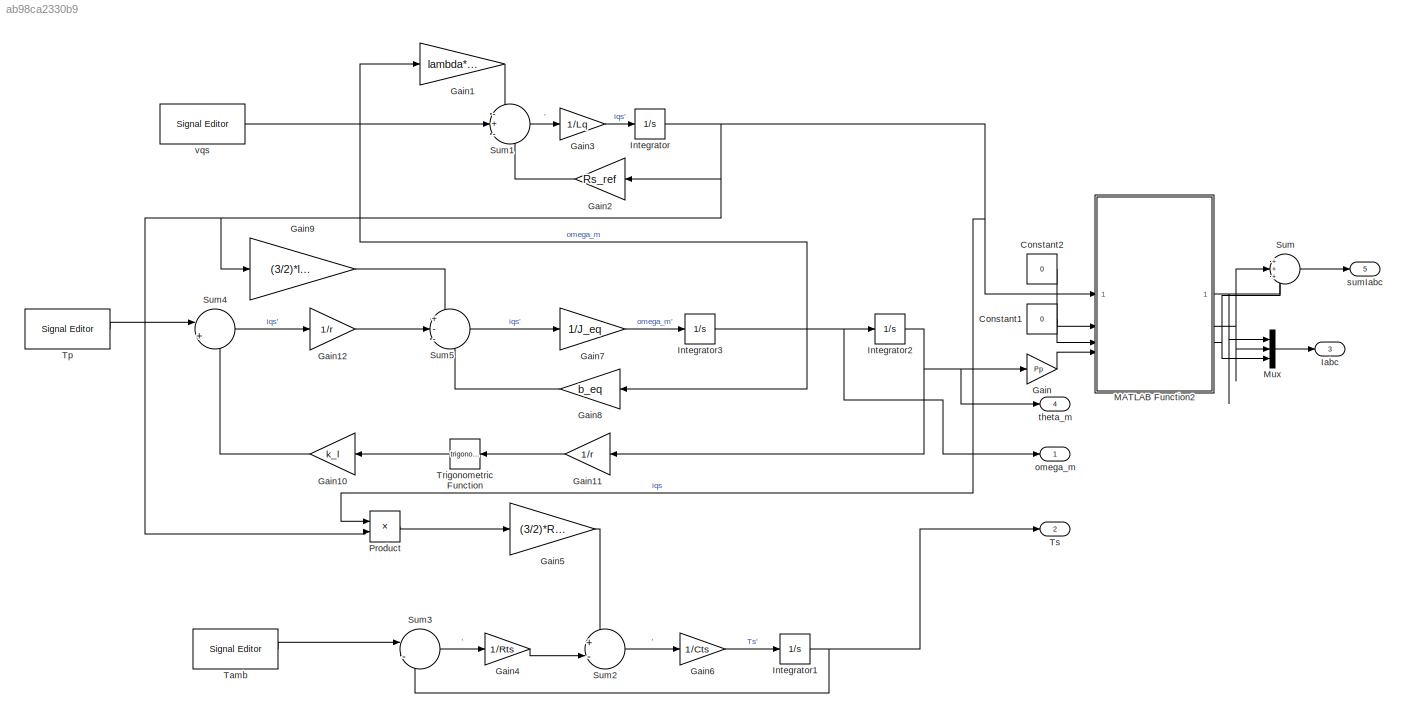
MODEL slx_ab98ca2330b9
KIND model
CONFIG AbsTol = auto
CONFIG EnableMultiTasking = off
CONFIG FixedStep = auto
CONFIG MaxStep = auto
CONFIG MinStep = auto
CONFIG RelTol = 1e-3
CONFIG SampleTimeConstraint = Unconstrained
CONFIG SolverName = VariableStepAuto
CONFIG StartTime = 0.0
CONFIG StopTime = 1
BLOCK [Constant] Constant1
  Value = 0
BLOCK [Constant] Constant2
  Value = 0
BLOCK [Gain] Gain
  Gain = Pp
BLOCK [Gain] Gain1
  Gain = lambda*Pp
BLOCK [Gain] Gain10
  Gain = k_l
BLOCK [Gain] Gain11
  Gain = 1/r
BLOCK [Gain] Gain12
  Gain = 1/r
BLOCK [Gain] Gain2
  Gain = Rs_ref
BLOCK [Gain] Gain3
  Gain = 1/Lq
BLOCK [Gain] Gain4
  Gain = 1/Rts
BLOCK [Gain] Gain5
  Gain = (3/2)*Rs_ref
BLOCK [Gain] Gain6
  Gain = 1/Cts
BLOCK [Gain] Gain7
  Gain = 1/J_eq
BLOCK [Gain] Gain8
  Gain = b_eq
BLOCK [Gain] Gain9
  Gain = (3/2)*lambda*Pp
BLOCK [Outport] Iabc
  Port = 3
BLOCK [Integrator] Integrator
BLOCK [Integrator] Integrator1
BLOCK [Integrator] Integrator2
BLOCK [Integrator] Integrator3
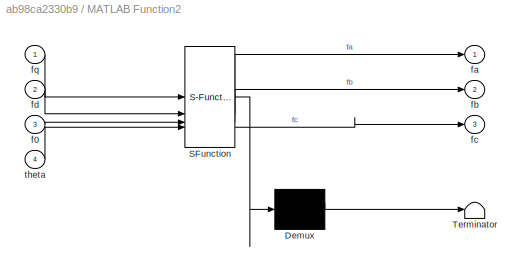
BLOCK [SubSystem] MATLAB Function2
  ErrorFcn = Stateflow.Translate.translate
  LibrarySourceBlock = simulink/User-Defined\nFunctions/MATLAB Function
  PermitHierarchicalResolution = ExplicitOnly
  SFBlockType = MATLAB Function
  TreatAsAtomicUnit = on
BLOCK [Demux] MATLAB Function2/ Demux 
  Outputs = 1
BLOCK [S-Function] MATLAB Function2/ SFunction 
  EnableBusSupport = on
  FunctionName = sf_sfun
  PortCounts = [4 4]
  SFcnIsStateOwnerBlock = off
  SFunctionDeploymentMode = off
  Tag = Stateflow S-Function 4
BLOCK [Terminator] MATLAB Function2/ Terminator 
BLOCK [Inport] MATLAB Function2/f0
  Port = 3
BLOCK [Outport] MATLAB Function2/fa
BLOCK [Outport] MATLAB Function2/fb
  Port = 2
BLOCK [Outport] MATLAB Function2/fc
  Port = 3
BLOCK [Inport] MATLAB Function2/fd
  Port = 2
BLOCK [Inport] MATLAB Function2/fq
BLOCK [Inport] MATLAB Function2/theta
  Port = 4
BLOCK [Mux] Mux
  DisplayOption = bar
  Inputs = 3
BLOCK [Product] Product
BLOCK [Sum] Sum
  Inputs = +++
BLOCK [Sum] Sum1
  Inputs = -+-
BLOCK [Sum] Sum2
  Inputs = +-|
BLOCK [Sum] Sum3
  Inputs = |-+
BLOCK [Sum] Sum4
  Inputs = |++
BLOCK [Sum] Sum5
  Inputs = +--
BLOCK [Reference] Tamb  REF=SignalEditorBlockLib/Signal Editor
  LibrarySourceBlock = simulink/Sources/Signal Editor
  SourceBlock = SignalEditorBlockLib/Signal Editor
  SourceType = SignalEditor
  UserDataPersistent = on
BLOCK [Reference] Tp  REF=SignalEditorBlockLib/Signal Editor
  LibrarySourceBlock = simulink/Sources/Signal Editor
  SourceBlock = SignalEditorBlockLib/Signal Editor
  SourceType = SignalEditor
  UserDataPersistent = on
BLOCK [Trigonometry] Trigonometric Function
BLOCK [Outport] Ts
  Port = 2
BLOCK [Outport] omega_m
BLOCK [Outport] sumIabc
  Port = 5
BLOCK [Outport] theta_m
  Port = 4
BLOCK [Reference] vqs  REF=SignalEditorBlockLib/Signal Editor
  LibrarySourceBlock = simulink/Sources/Signal Editor
  SourceBlock = SignalEditorBlockLib/Signal Editor
  SourceType = SignalEditor
  UserDataPersistent = on
LINE Constant1:1 -> MATLAB Function2:3
LINE Constant2:1 -> MATLAB Function2:2
LINE Gain10:1 -> Sum4:2
LINE Gain11:1 -> Trigonometric Function:1
LINE Gain12:1 -> Sum5:2
LINE Gain1:1 -> Sum1:1
LINE Gain2:1 -> Sum1:3
LINE Gain3:1 -> Integrator:1
LINE Gain4:1 -> Sum2:2
LINE Gain5:1 -> Sum2:1
LINE Gain6:1 -> Integrator1:1
LINE Gain7:1 -> Integrator3:1
LINE Gain8:1 -> Sum5:3
LINE Gain9:1 -> Sum5:1
LINE Gain:1 -> MATLAB Function2:4
NET Integrator1:1 -> Sum3:2, Ts:1
NET Integrator2:1 -> Gain11:1, Gain:1, theta_m:1
NET Integrator3:1 -> Gain1:1, Gain8:1, Integrator2:1, omega_m:1
NET Integrator:1 -> Gain2:1, Gain9:1, MATLAB Function2:1, Product:1, Product:2
NET MATLAB Function2:1 -> Mux:1, Sum:1
NET MATLAB Function2:2 -> Mux:2, Sum:2
NET MATLAB Function2:3 -> Mux:3, Sum:3
LINE Mux:1 -> Iabc:1
LINE Product:1 -> Gain5:1
LINE Sum1:1 -> Gain3:1
LINE Sum2:1 -> Gain6:1
LINE Sum3:1 -> Gain4:1
LINE Sum4:1 -> Gain12:1
LINE Sum5:1 -> Gain7:1
LINE Sum:1 -> sumIabc:1
LINE Tamb:1 -> Sum3:1
LINE Tp:1 -> Sum4:1
LINE Trigonometric Function:1 -> Gain10:1
LINE vqs:1 -> Sum1:2
note: NET lines group one-source signal fan-out (src -> all destinations, sorted); 1:1 wires keep LINE
CHART MATLAB Function2 states=1 transitions=1
  STATE_LABEL 'eML_blk_kernel()'
  STATE_LABEL 'SCRIPT:\nfunction [fa,fb,fc] = TI_Park(fq,fd,f0,theta)\n\nf = [     cos(theta)              sin(theta)         1;\n       cos(theta - (2*pi)/3)   sin(theta - (2*pi)/3)   1;\n       cos(theta + (2*pi)/3)   sin(theta + (2*pi)/3)   1];\n\nresultados = f*[fq;fd;f0];\nfa = resultados(1);\nfb = resultados(2);\nfc = resultados(3);\n\n'
CHART  states=0 transitions=0
